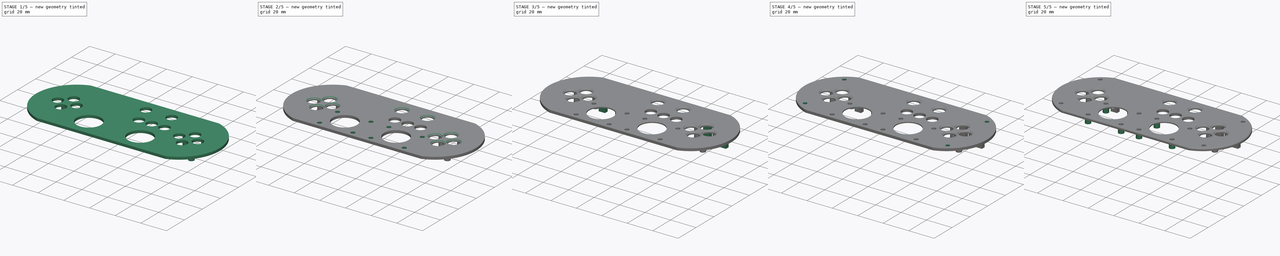
[diagram: build sequence overview — one tinted view per stage of 5, left to right]
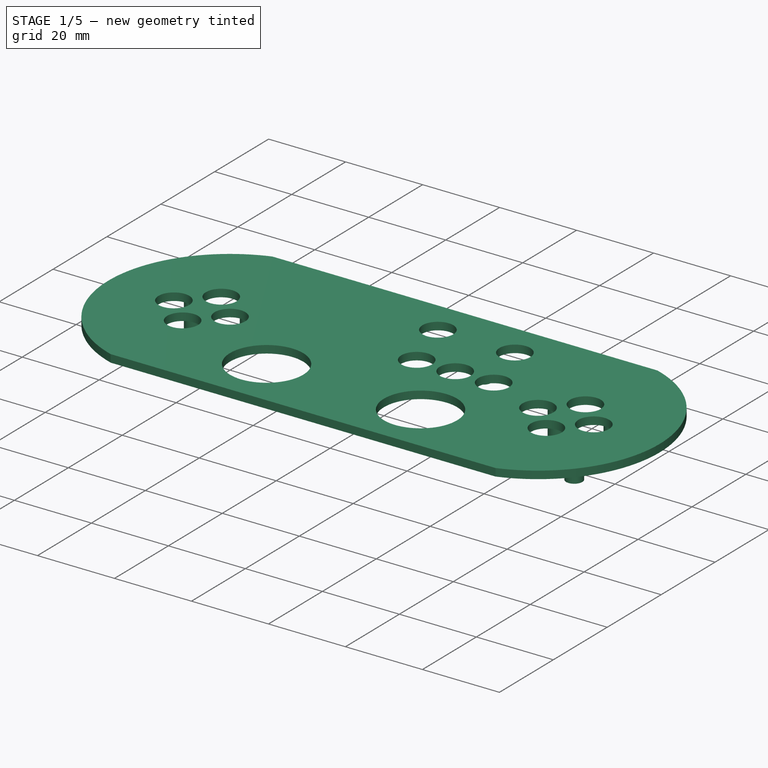
[diagram: stage 1 of 5 — iso view after this stage's code; geometry added in this stage tinted green]
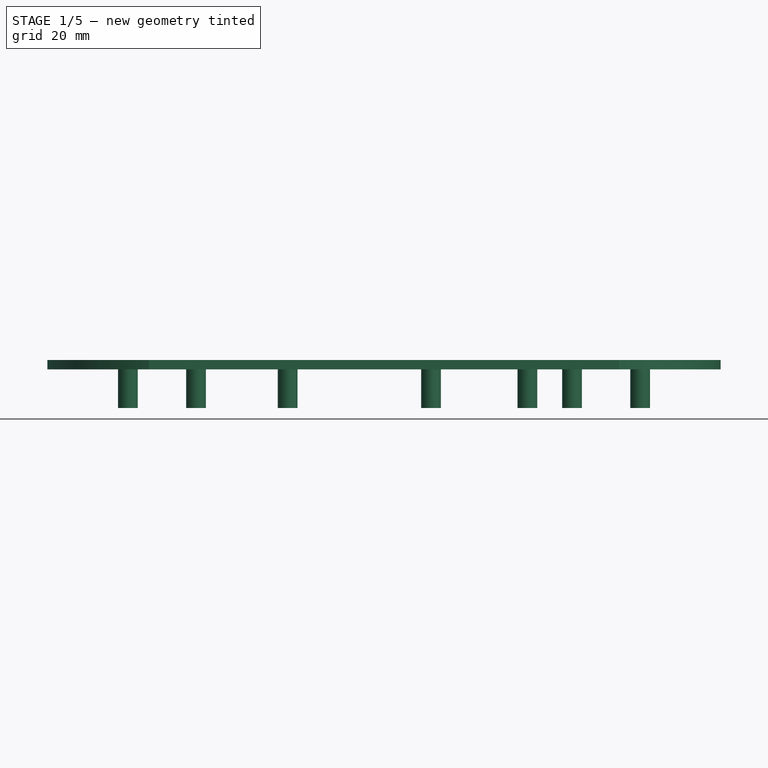
[diagram: stage 1 of 5 — front view after this stage's code; geometry added in this stage tinted green]
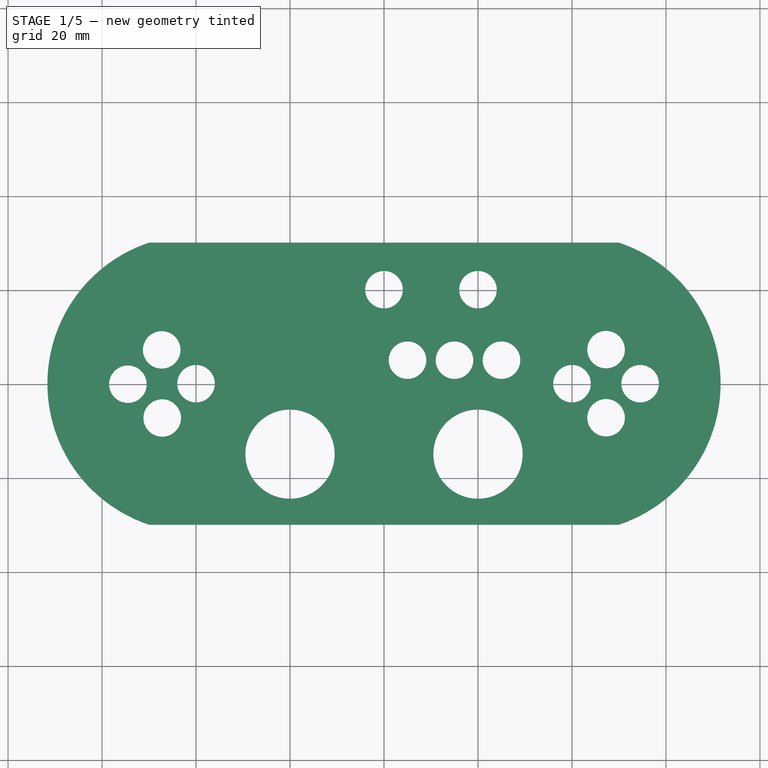
[diagram: stage 1 of 5 — top view after this stage's code; geometry added in this stage tinted green]
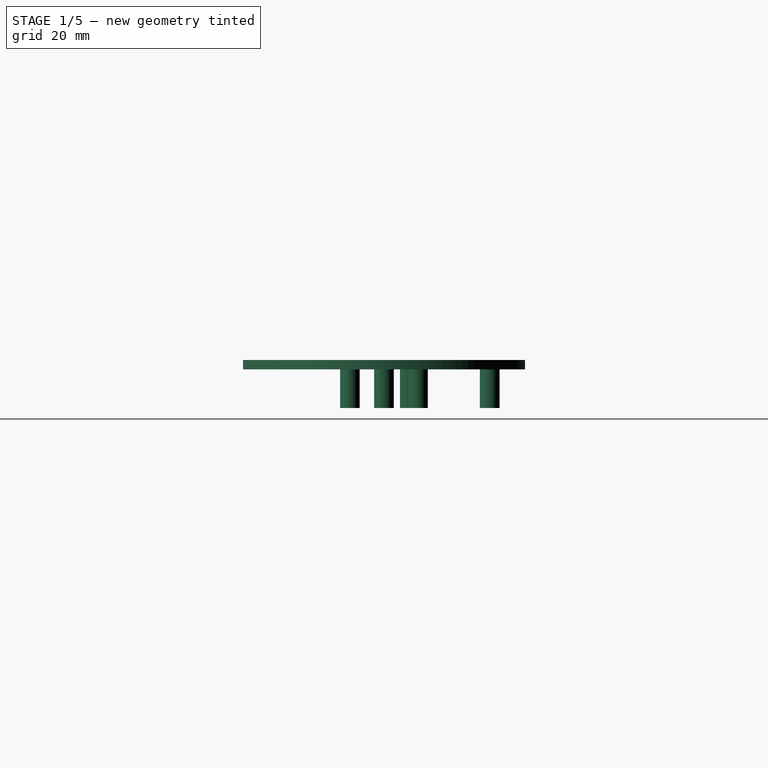
[diagram: stage 1 of 5 — right view after this stage's code; geometry added in this stage tinted green]
FCSTD DOCUMENT  (FreeCAD 0.20R29410 (Git))
Label: ggp-topdeck
License: All rights reserved
LicenseURL: http://en.wikipedia.org/wiki/All_rights_reserved
objects: Sketcher::SketchObject×11, PartDesign::Pocket×7, PartDesign::Pad×4, PartDesign::Chamfer×4, PartDesign::Fillet×1, PartDesign::Body×1
note: 44 computed .brp shape members not serialized (recipe doc carries the construction recipe); baked Part::Feature solids carry a one-line shape summary decoded from their .brp

FEATURE [Sketcher::SketchObject] Sketch
  FullyConstrained = true
  MapMode = 5
  Support = -> [XY_Plane]
  sketch-geometry (4):
    g0: LineSegment StartX=-50 StartY=30 StartZ=0 EndX=50 EndY=30 EndZ=0
    g1: LineSegment StartX=-50 StartY=-30 StartZ=0 EndX=50 EndY=-30 EndZ=0
    g2: ArcOfCircle CenterX=-40.0088 CenterY=0 CenterZ=0 NormalX=0 NormalY=0 NormalZ=1 AngleXU=0 Radius=31.62 StartAngle=1.89228 EndAngle=4.3909
    g3: ArcOfCircle CenterX=40.0088 CenterY=0 CenterZ=0 NormalX=0 NormalY=0 NormalZ=1 AngleXU=0 Radius=31.62 StartAngle=5.03388 EndAngle=7.53249
  constraints (14):
    c: Horizontal(g0)
    c: Horizontal(g1)
    c: PointOnObject(g2,g-1)
    c: Coincident(g2,g0)
    c: Coincident(g2,g1)
    c: PointOnObject(g3,g-1)
    c: Coincident(g3,g0)
    c: Coincident(g3,g1)
    c: DistanceX(g0) = 50
    c: DistanceY(g0) = 30
    c: DistanceX(g1) = 50
    c: DistanceX(g1) = -50
    c: Radius(g3) = 31.62
    c: Radius(g2) = 31.62
FEATURE [PartDesign::Pad] Pad
  Direction = (0,0,1)
  Length = 2
  Length2 = 10
  Profile = -> Sketch
  ReferenceAxis = -> Sketch [N_Axis]
  Type = 0
FEATURE [Sketcher::SketchObject] Sketch001
  ExternalGeometry = -> [Pad]
  FullyConstrained = true
  MapMode = 5
  Placement = pos=(0,0,2) rot=(0,0,1;0rad)
  Support = -> [Pad]
  sketch-geometry (15):
    g0: Circle CenterX=-47.3054 CenterY=7.19406 CenterZ=0 NormalX=0 NormalY=0 NormalZ=1 AngleXU=0 Radius=4
    g1: Circle CenterX=-40 CenterY=0 CenterZ=0 NormalX=0 NormalY=0 NormalZ=1 AngleXU=0 Radius=4
    g2: Circle CenterX=-47.1936 CenterY=-7.30594 CenterZ=0 NormalX=0 NormalY=0 NormalZ=1 AngleXU=0 Radius=4
    g3: Circle CenterX=-54.499 CenterY=-0.111878 CenterZ=0 NormalX=0 NormalY=0 NormalZ=1 AngleXU=0 Radius=4
    g4: Circle CenterX=40.0088 CenterY=0 CenterZ=0 NormalX=0 NormalY=0 NormalZ=1 AngleXU=0 Radius=4
    g5: Circle CenterX=47.2588 CenterY=7.24993 CenterZ=0 NormalX=0 NormalY=0 NormalZ=1 AngleXU=0 Radius=4
    g6: Circle CenterX=54.5088 CenterY=0 CenterZ=0 NormalX=0 NormalY=0 NormalZ=1 AngleXU=0 Radius=4
    g7: Circle CenterX=47.2589 CenterY=-7.25007 CenterZ=0 NormalX=0 NormalY=0 NormalZ=1 AngleXU=0 Radius=4
    g8: Circle CenterX=20 CenterY=-15 CenterZ=0 NormalX=0 NormalY=0 NormalZ=1 AngleXU=0 Radius=9.5
    g9: Circle CenterX=-20 CenterY=-15 CenterZ=0 NormalX=0 NormalY=0 NormalZ=1 AngleXU=0 Radius=9.5
    g10: Circle CenterX=15 CenterY=5 CenterZ=0 NormalX=0 NormalY=0 NormalZ=1 AngleXU=0 Radius=4
    g11: Circle CenterX=25 CenterY=5 CenterZ=0 NormalX=0 NormalY=0 NormalZ=1 AngleXU=0 Radius=4
    g12: Circle CenterX=20 CenterY=20 CenterZ=0 NormalX=0 NormalY=0 NormalZ=1 AngleXU=0 Radius=4
    g13: Circle CenterX=0 CenterY=20 CenterZ=0 NormalX=0 NormalY=0 NormalZ=1 AngleXU=0 Radius=4
    g14: Circle CenterX=5 CenterY=5 CenterZ=0 NormalX=0 NormalY=0 NormalZ=1 AngleXU=0 Radius=4
  constraints (44):
    c: DistanceY(g2,g0) = 14.5
    c: Distance(g0,g1) = 10.253
    c: Distance(g3,g2) = 10.253
    c: Distance(g2,g1) = 10.253
    c: Distance(g3,g0) = 10.253
    c: Radius(g0) = 4
    c: Radius(g1) = 4
    c: Radius(g2) = 4
    c: Radius(g3) = 4
    c: DistanceX(g3,g1) = 14.499
    c: DistanceX(g1) = -40
    c: DistanceY(g1) = 0
    c: Coincident(g4,g-4)
    c: PointOnObject(g6,g-1)
    c: Radius(g6) = 4
    c: Radius(g5) = 4
    c: Radius(g4) = 4
    c: Radius(g7) = 4
    c: Distance(g4,g5) = 10.253
    c: Distance(g7,g6) = 10.253
    c: Distance(g6,g5) = 10.253
    c: DistanceX(g4,g6) = 14.5
    c: Distance(g7,g5) = 14.5
    c: Radius(g8) = 9.5
    c: Radius(g9) = 9.5
    c: DistanceX(g8) = 20
    c: DistanceY(g8) = -15
    c: DistanceX(g9) = -20
    c: DistanceY(g9) = -15
    c: PointOnObject(g13,g-2)
    c: Radius(g12) = 4
    c: Radius(g11) = 4
    c: Radius(g10) = 4
    c: Radius(g13) = 4
    c: DistanceX(g12) = 20
    c: DistanceY(g12) = 20
    c: DistanceX(g11) = 25
    c: DistanceY(g11) = 5
    c: DistanceX(g11,g10) = -10
    c: DistanceY(g11,g10) = 0
    c: DistanceY(g13) = 20
    c: Radius(g14) = 4
    c: DistanceX(g14) = 5
    c: DistanceY(g14) = 5
FEATURE [PartDesign::Pocket] Pocket
  BaseFeature = -> Pad
  Direction = (0,0,-1)
  Length = 5
  Length2 = 5
  Profile = -> Sketch001
  ReferenceAxis = -> Sketch001 [N_Axis]
  Type = 0
FEATURE [Sketcher::SketchObject] Sketch002
  ExternalGeometry = -> [Pocket]
  FullyConstrained = true
  MapMode = 5
  Placement = pos=(0,0,0) rot=(1,0,0;3.14159rad)
  Support = -> [Pocket]
  sketch-geometry (22):
    g0: Circle CenterX=-40 CenterY=7.25 CenterZ=0 NormalX=0 NormalY=0 NormalZ=1 AngleXU=0 Radius=2.1
    g1: Circle CenterX=-54.5 CenterY=7.25 CenterZ=0 NormalX=0 NormalY=0 NormalZ=1 AngleXU=0 Radius=2.1
    g2: Circle CenterX=-40 CenterY=-7.25 CenterZ=0 NormalX=0 NormalY=0 NormalZ=1 AngleXU=0 Radius=2.1
    g3: Circle CenterX=-54.5 CenterY=-7.25 CenterZ=0 NormalX=0 NormalY=0 NormalZ=1 AngleXU=0 Radius=2.1
    g4: Circle CenterX=40 CenterY=-7.25 CenterZ=0 NormalX=0 NormalY=0 NormalZ=1 AngleXU=0 Radius=2.1
    g5: Circle CenterX=54.5 CenterY=-7.25 CenterZ=0 NormalX=0 NormalY=0 NormalZ=1 AngleXU=0 Radius=2.1
    g6: Circle CenterX=54.5 CenterY=7.25 CenterZ=0 NormalX=0 NormalY=0 NormalZ=1 AngleXU=0 Radius=2.1
    g7: Circle CenterX=40 CenterY=7.25 CenterZ=0 NormalX=0 NormalY=0 NormalZ=1 AngleXU=0 Radius=2.1
    g8: Circle CenterX=30.5088 CenterY=0 CenterZ=0 NormalX=0 NormalY=0 NormalZ=1 AngleXU=0 Radius=2.1
    g9: Circle CenterX=-20.5 CenterY=-5.5 CenterZ=0 NormalX=0 NormalY=0 NormalZ=1 AngleXU=0 Radius=2.1
    g10: Circle CenterX=10 CenterY=-22.5 CenterZ=0 NormalX=0 NormalY=0 NormalZ=1 AngleXU=0 Radius=2.1
    g11: Circle CenterX=30.5088 CenterY=0 CenterZ=0 NormalX=0 NormalY=0 NormalZ=1 AngleXU=0 Radius=1.45
    g12: Circle CenterX=40 CenterY=7.25 CenterZ=0 NormalX=0 NormalY=0 NormalZ=1 AngleXU=0 Radius=1.45
    g13: Circle CenterX=54.5 CenterY=7.25 CenterZ=0 NormalX=0 NormalY=0 NormalZ=1 AngleXU=0 Radius=1.45
    g14: Circle CenterX=54.5 CenterY=-7.25 CenterZ=0 NormalX=0 NormalY=0 NormalZ=1 AngleXU=0 Radius=1.45
    g15: Circle CenterX=40 CenterY=-7.25 CenterZ=0 NormalX=0 NormalY=0 NormalZ=1 AngleXU=0 Radius=1.45
    g16: Circle CenterX=-20.5 CenterY=-5.5 CenterZ=0 NormalX=0 NormalY=0 NormalZ=1 AngleXU=0 Radius=1.45
    g17: Circle CenterX=10 CenterY=-22.5 CenterZ=0 NormalX=0 NormalY=0 NormalZ=1 AngleXU=0 Radius=1.45
    g18: Circle CenterX=-40 CenterY=7.25 CenterZ=0 NormalX=0 NormalY=0 NormalZ=1 AngleXU=0 Radius=1.45
    g19: Circle CenterX=-54.5 CenterY=7.25 CenterZ=0 NormalX=0 NormalY=0 NormalZ=1 AngleXU=0 Radius=1.45
    g20: Circle CenterX=-54.5 CenterY=-7.25 CenterZ=0 NormalX=0 NormalY=0 NormalZ=1 AngleXU=0 Radius=1.45
    g21: Circle CenterX=-40 CenterY=-7.25 CenterZ=0 NormalX=0 NormalY=0 NormalZ=1 AngleXU=0 Radius=1.45
  constraints (56):
    c: Radius(g0) = 2.1
    c: Radius(g1) = 2.1
    c: Radius(g3) = 2.1
    c: Radius(g2) = 2.1
    c: DistanceX(g0) = -40
    c: DistanceY(g0) = 7.25
    c: DistanceX(g2) = -40
    c: DistanceY(g2) = -7.25
    c: DistanceX(g3) = -54.5
    c: DistanceY(g3) = -7.25
    c: DistanceX(g1) = -54.5
    c: DistanceY(g1) = 7.25
    c: DistanceY(g4,g7) = 14.5
    c: DistanceX(g7,g6) = 14.5
    c: DistanceX(g-1,g7) = 40
    c: DistanceY(g4,g-1) = 7.25
    c: Radius(g6) = 2.1
    c: Radius(g7) = 2.1
    c: Radius(g4) = 2.1
    c: Radius(g5) = 2.1
    c: DistanceY(g6) = 7.25
    c: DistanceX(g5) = 54.5
    c: DistanceY(g5) = -7.25
    c: DistanceX(g4) = 40
    c: PointOnObject(g8,g-1)
    c: DistanceX(g8,g-4) = 9.5
    c: Radius(g9) = 2.1
    c: Radius(g8) = 2.1
    c: Radius(g10) = 2.1
    c: DistanceX(g10) = 10
    c: DistanceY(g10) = -22.5
    c: Coincident(g11,g8)
    c: Radius(g11) = 1.45
    c: Coincident(g12,g7)
    c: Radius(g12) = 1.45
    c: Coincident(g13,g6)
    c: Radius(g13) = 1.45
    c: Coincident(g14,g5)
    c: Radius(g14) = 1.45
    c: Coincident(g15,g4)
    c: Radius(g15) = 1.45
    c: Radius(g16) = 1.45
    c: Coincident(g17,g10)
    c: Radius(g17) = 1.45
    c: Coincident(g18,g0)
    c: Coincident(g19,g1)
    c: Coincident(g20,g3)
    c: Coincident(g21,g2)
    c: Radius(g18) = 1.45
    c: Radius(g19) = 1.45
    c: Radius(g21) = 1.45
    c: Radius(g20) = 1.45
    c: DistanceX(g9,g-1) = 20.5
    c: DistanceX(g16,g-1) = 20.5
    c: DistanceY(g9,g-1) = 5.5
    c: DistanceY(g16,g-1) = 5.5
FEATURE [PartDesign::Pad] Pad001
  BaseFeature = -> Pocket
  Direction = (0,0,-1)
  Length = 8.2
  Length2 = 10
  Profile = -> Sketch002
  ReferenceAxis = -> Sketch002 [N_Axis]
  Type = 0
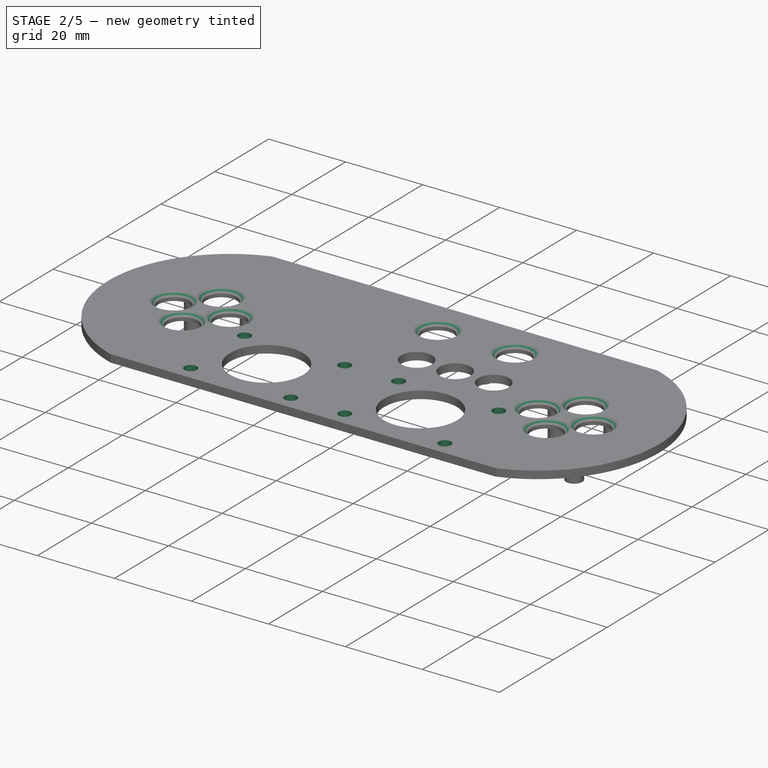
[diagram: stage 2 of 5 — iso view after this stage's code; geometry added in this stage tinted green]
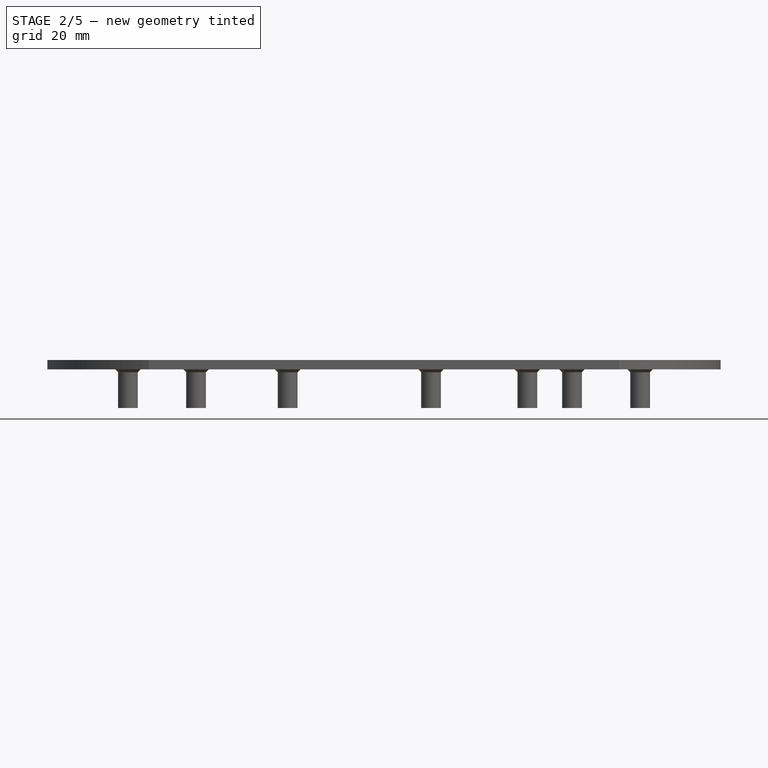
[diagram: stage 2 of 5 — front view after this stage's code; geometry added in this stage tinted green]
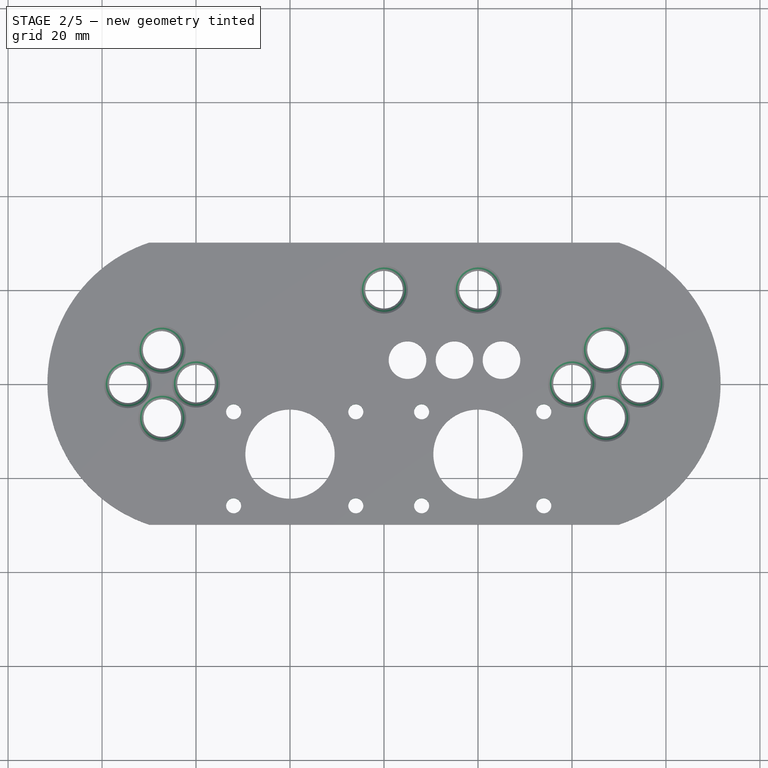
[diagram: stage 2 of 5 — top view after this stage's code; geometry added in this stage tinted green]
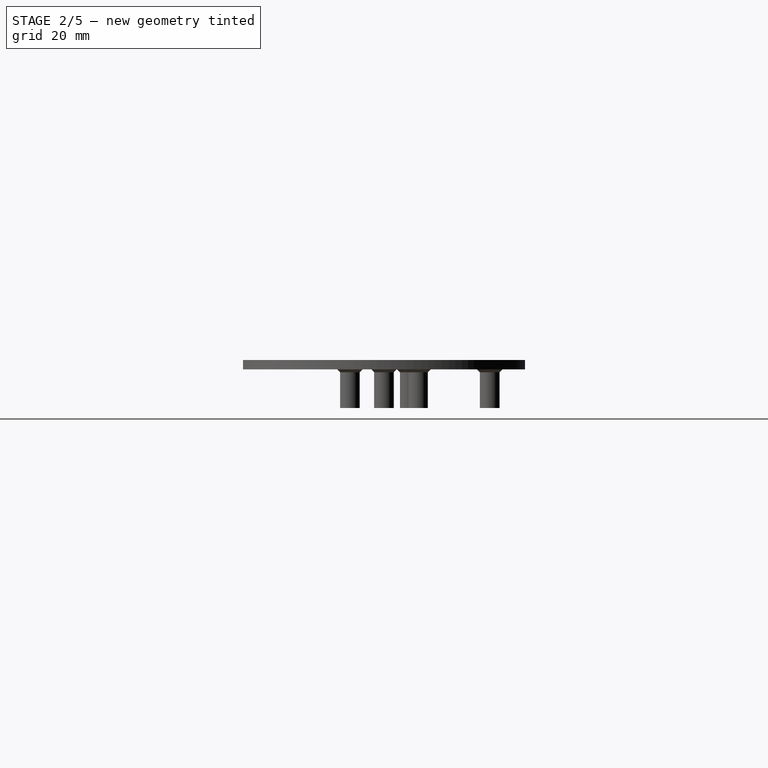
[diagram: stage 2 of 5 — right view after this stage's code; geometry added in this stage tinted green]
FEATURE [Sketcher::SketchObject] Sketch003
  ExternalGeometry = -> [Pad001]
  FullyConstrained = true
  MapMode = 5
  Placement = pos=(0,0,0) rot=(1,0,0;3.14159rad)
  Support = -> [Pad001]
  sketch-geometry (8):
    g0: Circle CenterX=-32 CenterY=26 CenterZ=0 NormalX=0 NormalY=0 NormalZ=1 AngleXU=0 Radius=1.6
    g1: Circle CenterX=-6 CenterY=26 CenterZ=0 NormalX=0 NormalY=0 NormalZ=1 AngleXU=0 Radius=1.6
    g2: Circle CenterX=-6 CenterY=6 CenterZ=0 NormalX=0 NormalY=0 NormalZ=1 AngleXU=0 Radius=1.6
    g3: Circle CenterX=-32 CenterY=6 CenterZ=0 NormalX=0 NormalY=0 NormalZ=1 AngleXU=0 Radius=1.6
    g4: Circle CenterX=8 CenterY=6 CenterZ=0 NormalX=0 NormalY=0 NormalZ=1 AngleXU=0 Radius=1.6
    g5: Circle CenterX=8 CenterY=26 CenterZ=0 NormalX=0 NormalY=0 NormalZ=1 AngleXU=0 Radius=1.6
    g6: Circle CenterX=34 CenterY=26 CenterZ=0 NormalX=0 NormalY=0 NormalZ=1 AngleXU=0 Radius=1.6
    g7: Circle CenterX=34 CenterY=6 CenterZ=0 NormalX=0 NormalY=0 NormalZ=1 AngleXU=0 Radius=1.6
  constraints (24):
    c: Radius(g3) = 1.6
    c: Radius(g2) = 1.6
    c: Radius(g1) = 1.6
    c: Radius(g0) = 1.6
    c: DistanceX(g3) = -32
    c: DistanceY(g3) = 6
    c: DistanceX(g0) = -32
    c: DistanceY(g0) = 26
    c: DistanceX(g1) = -6
    c: DistanceY(g1) = 26
    c: DistanceX(g2) = -6
    c: DistanceY(g2) = 6
    c: Radius(g4) = 1.6
    c: Radius(g5) = 1.6
    c: Radius(g6) = 1.6
    c: Radius(g7) = 1.6
    c: DistanceX(g4) = 8
    c: DistanceY(g4) = 6
    c: DistanceX(g5) = 8
    c: DistanceY(g5) = 26
    c: DistanceX(g7) = 34
    c: DistanceY(g7) = 6
    c: DistanceX(g6) = 34
    c: DistanceY(g6) = 26
FEATURE [PartDesign::Pocket] Pocket001
  BaseFeature = -> Pad001
  Direction = (0,0,1)
  Length = 5
  Length2 = 5
  Profile = -> Sketch003
  ReferenceAxis = -> Sketch003 [N_Axis]
  Type = 0
FEATURE [PartDesign::Chamfer] Chamfer
  Angle = 45
  Base = -> Pocket001 [Edge15,Edge17,Edge32,Edge30,Edge33,Edge44,Edge38,Edge25,Edge41,Edge27,Edge43]
  BaseFeature = -> Pocket001
  ChamferType = 0
  FlipDirection = false
  Size = 0.6
  Size2 = 1
  SupportTransform = false
  UseAllEdges = false
FEATURE [PartDesign::Chamfer] Chamfer001
  Angle = 45
  Base = -> Chamfer [Edge73,Edge77,Edge75,Edge55,Edge79,Edge93,Edge91,Edge89,Edge71,Edge87]
  BaseFeature = -> Chamfer
  ChamferType = 0
  FlipDirection = false
  Size = 1.1
  Size2 = 1
  SupportTransform = false
  UseAllEdges = false
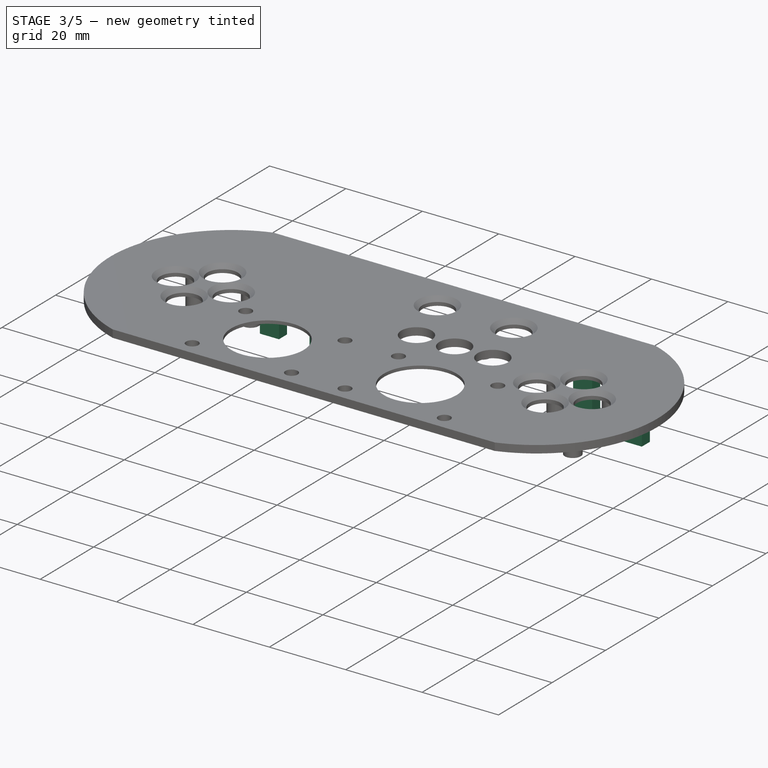
[diagram: stage 3 of 5 — iso view after this stage's code; geometry added in this stage tinted green]
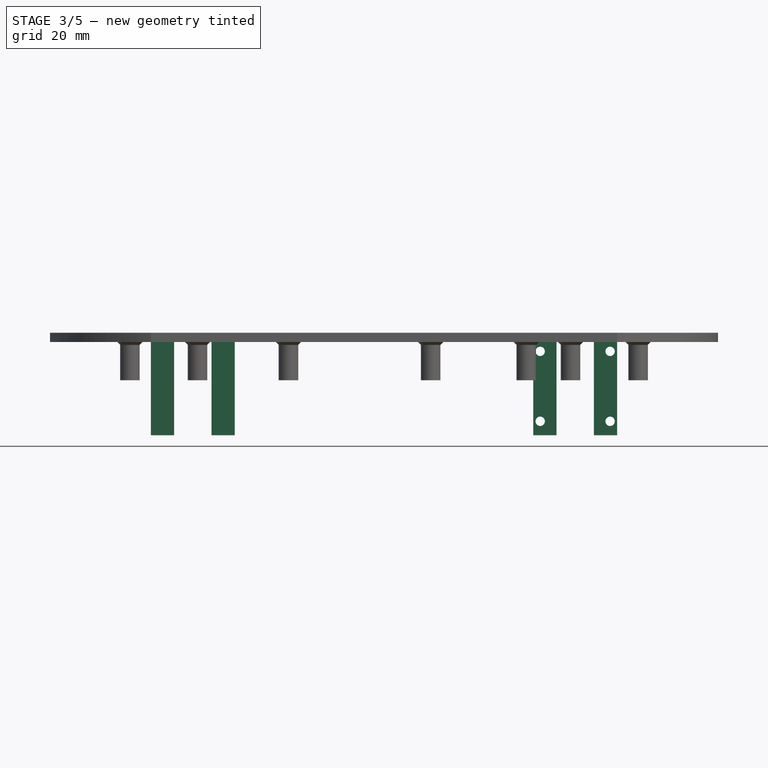
[diagram: stage 3 of 5 — front view after this stage's code; geometry added in this stage tinted green]
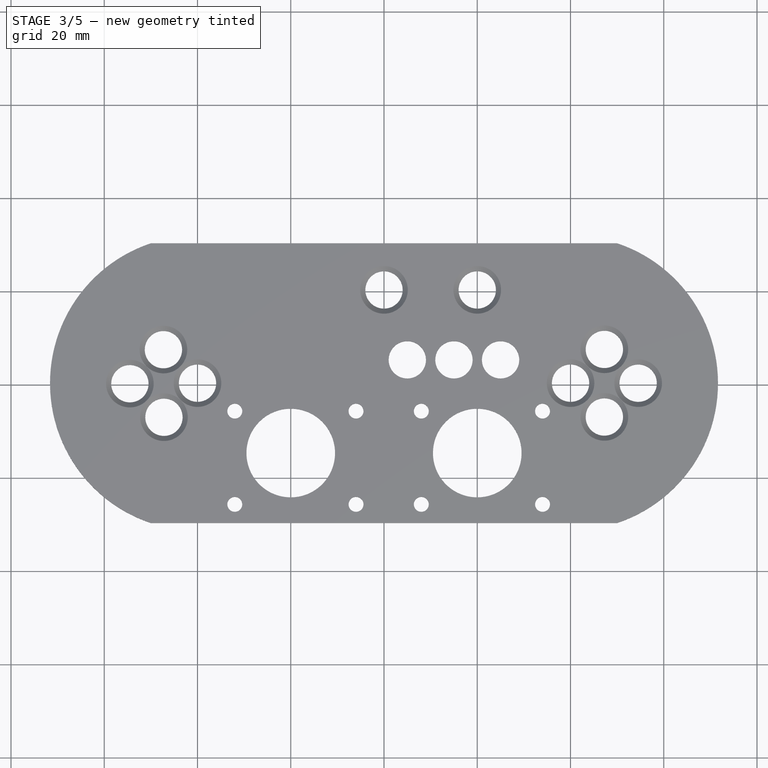
[diagram: stage 3 of 5 — top view after this stage's code; geometry added in this stage tinted green]
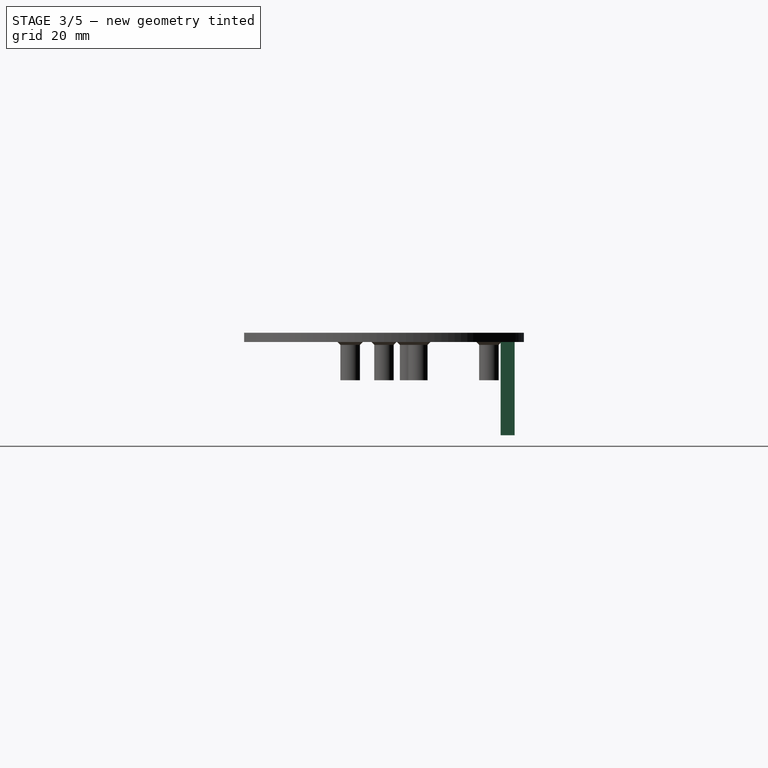
[diagram: stage 3 of 5 — right view after this stage's code; geometry added in this stage tinted green]
FEATURE [PartDesign::Chamfer] Chamfer002
  Angle = 45
  Base = -> Chamfer001 [Edge13,Edge17]
  BaseFeature = -> Chamfer001
  ChamferType = 1
  FlipDirection = false
  Size = 3
  Size2 = 1.2
  SupportTransform = false
  UseAllEdges = false
FEATURE [Sketcher::SketchObject] Sketch004
  ExternalGeometry = -> [Chamfer002]
  FullyConstrained = true
  MapMode = 5
  Placement = pos=(0,0,0) rot=(1,0,0;3.14159rad)
  Support = -> [Chamfer002]
  sketch-geometry (16):
    g0: LineSegment StartX=-50 StartY=-25 StartZ=0 EndX=-45 EndY=-25 EndZ=0
    g1: LineSegment StartX=-45 StartY=-25 StartZ=0 EndX=-45 EndY=-28 EndZ=0
    g2: LineSegment StartX=-45 StartY=-28 StartZ=0 EndX=-50 EndY=-28 EndZ=0
    g3: LineSegment StartX=-50 StartY=-28 StartZ=0 EndX=-50 EndY=-25 EndZ=0
    g4: LineSegment StartX=-37 StartY=-25 StartZ=0 EndX=-32 EndY=-25 EndZ=0
    g5: LineSegment StartX=-32 StartY=-25 StartZ=0 EndX=-32 EndY=-28.024 EndZ=0
    g6: LineSegment StartX=-32 StartY=-28.024 StartZ=0 EndX=-37 EndY=-28.024 EndZ=0
    g7: LineSegment StartX=-37 StartY=-28.024 StartZ=0 EndX=-37 EndY=-25 EndZ=0
    g8: LineSegment StartX=50 StartY=-25 StartZ=0 EndX=45 EndY=-25 EndZ=0
    g9: LineSegment StartX=45 StartY=-25 StartZ=0 EndX=45 EndY=-28 EndZ=0
    g10: LineSegment StartX=45 StartY=-28 StartZ=0 EndX=50 EndY=-28 EndZ=0
    g11: LineSegment StartX=50 StartY=-28 StartZ=0 EndX=50 EndY=-25 EndZ=0
    g12: LineSegment StartX=37 StartY=-25 StartZ=0 EndX=32 EndY=-25 EndZ=0
    g13: LineSegment StartX=32 StartY=-25 StartZ=0 EndX=32 EndY=-28 EndZ=0
    g14: LineSegment StartX=32 StartY=-28 StartZ=0 EndX=37 EndY=-28 EndZ=0
    g15: LineSegment StartX=37 StartY=-28 StartZ=0 EndX=37 EndY=-25 EndZ=0
  constraints (49):
    c: Coincident(g0,g1)
    c: Coincident(g1,g2)
    c: Coincident(g2,g3)
    c: Coincident(g3,g0)
    c: Horizontal(g0)
    c: Horizontal(g2)
    c: Vertical(g1)
    c: Vertical(g3)
    c: Coincident(g4,g5)
    c: Coincident(g5,g6)
    c: Coincident(g6,g7)
    c: Horizontal(g4)
    c: Horizontal(g6)
    c: Vertical(g5)
    c: Vertical(g7)
    c: DistanceY(g-4,g2) = 2
    c: DistanceX(g0) = -45
    c: DistanceY(g0) = -25
    c: DistanceX(g0,g4) = 8
    c: DistanceX(g4,g4) = 5
    c: DistanceY(g5) = -28.024
    c: DistanceY(g2,g7) = 3
    c: DistanceX(g3,g7) = 13
    c: DistanceX(g4,g7) = 0
    c: DistanceY(g4,g7) = 0
    c: Coincident(g8,g9)
    c: Coincident(g9,g10)
    c: Coincident(g10,g11)
    c: Coincident(g11,g8)
    c: Horizontal(g8)
    c: Horizontal(g10)
    c: Vertical(g9)
    c: Vertical(g11)
    c: Coincident(g12,g13)
    c: Coincident(g13,g14)
    c: Coincident(g14,g15)
    c: Coincident(g15,g12)
    c: Horizontal(g12)
    c: Horizontal(g14)
    c: Vertical(g13)
    c: Vertical(g15)
    c: DistanceY(g-5,g10) = 2
    c: DistanceY(g14,g12) = 3
    c: DistanceY(g9,g8) = 3
    c: DistanceX(g8,g8) = 5
    c: DistanceX(g12,g12) = 5
    c: DistanceX(g8) = 50
    c: DistanceX(g12,g8) = 8
    c: DistanceY(g12) = -25
FEATURE [PartDesign::Pad] Pad002
  BaseFeature = -> Chamfer002
  Direction = (0,0,-1)
  Length = 20
  Length2 = 10
  Profile = -> Sketch004
  ReferenceAxis = -> Sketch004 [N_Axis]
  Type = 0
FEATURE [Sketcher::SketchObject] Sketch005
  ExternalGeometry = -> [Pad002]
  FullyConstrained = true
  MapMode = 5
  Placement = pos=(0,28,0) rot=(0,0.707107,0.707107;3.14159rad)
  Support = -> [Pad002]
  sketch-geometry (2):
    g0: Circle CenterX=-48.4889 CenterY=-2 CenterZ=0 NormalX=0 NormalY=0 NormalZ=1 AngleXU=0 Radius=1
    g1: Circle CenterX=-48.4899 CenterY=-17 CenterZ=0 NormalX=0 NormalY=0 NormalZ=1 AngleXU=0 Radius=1
  constraints (6):
    c: Radius(g0) = 1
    c: Radius(g1) = 1
    c: DistanceX(g0) = -48.4889
    c: DistanceY(g0) = -2
    c: DistanceX(g1) = -48.4899
    c: DistanceY(g1) = -17
FEATURE [PartDesign::Pocket] Pocket002
  BaseFeature = -> Pad002
  Direction = (0,-1,2e-16)
  Length = 5
  Length2 = 5
  Profile = -> Sketch005
  ReferenceAxis = -> Sketch005 [N_Axis]
  Type = 0
FEATURE [Sketcher::SketchObject] Sketch006
  FullyConstrained = false
  MapMode = 5
  Placement = pos=(0,28,0) rot=(0,0.707107,0.707107;3.14159rad)
  Support = -> [Pocket002]
  sketch-geometry (2):
    g0: Circle CenterX=-33.5 CenterY=-2 CenterZ=0 NormalX=0 NormalY=0 NormalZ=1 AngleXU=0 Radius=1
    g1: Circle CenterX=-33.5 CenterY=-17 CenterZ=0 NormalX=0 NormalY=0 NormalZ=1 AngleXU=0 Radius=1.00219
  constraints (4):
    c: DistanceX(g0) = -33.5
    c: DistanceY(g0) = -2
    c: DistanceX(g1) = -33.5
    c: DistanceY(g1) = -17
FEATURE [PartDesign::Pocket] Pocket003
  BaseFeature = -> Pocket002
  Direction = (0,-1,2e-16)
  Length = 5
  Length2 = 5
  Profile = -> Sketch006
  ReferenceAxis = -> Sketch006 [N_Axis]
  Type = 0
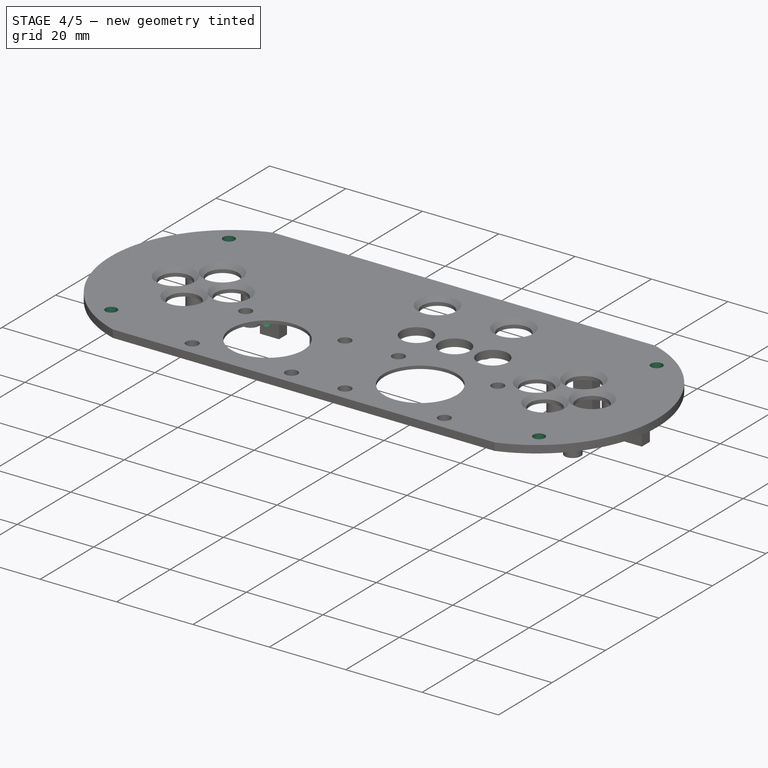
[diagram: stage 4 of 5 — iso view after this stage's code; geometry added in this stage tinted green]
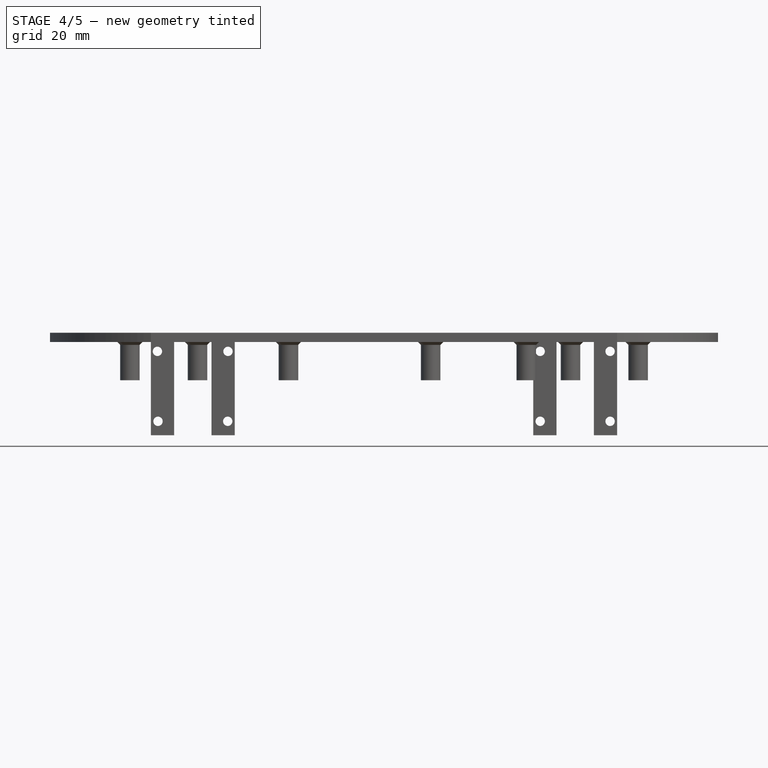
[diagram: stage 4 of 5 — front view after this stage's code; geometry added in this stage tinted green]
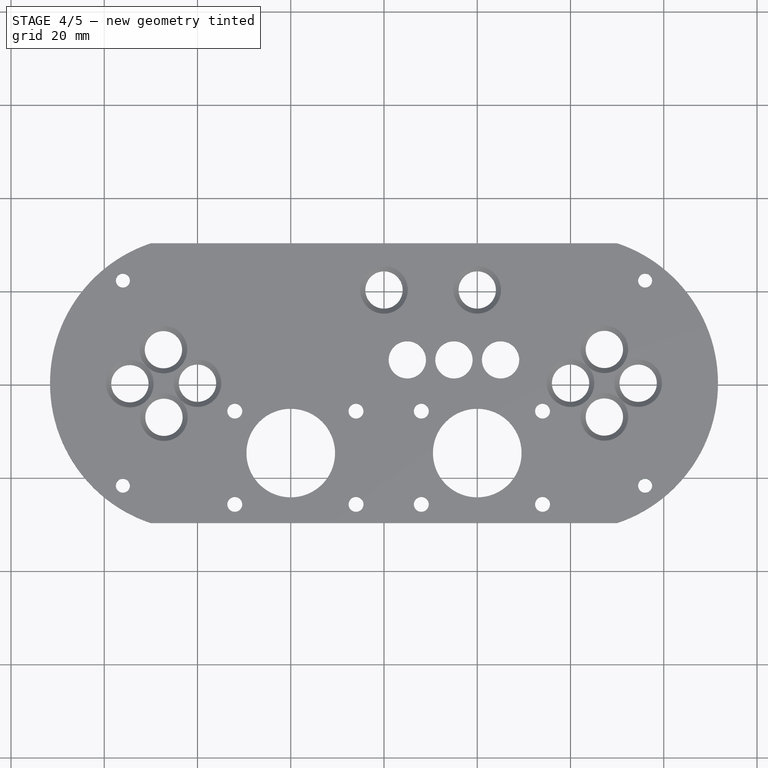
[diagram: stage 4 of 5 — top view after this stage's code; geometry added in this stage tinted green]
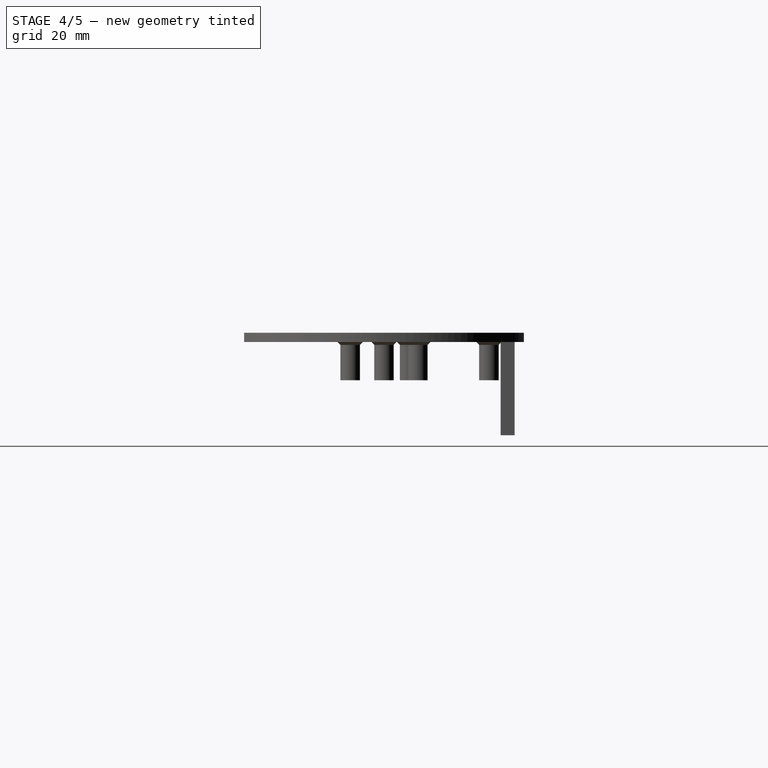
[diagram: stage 4 of 5 — right view after this stage's code; geometry added in this stage tinted green]
FEATURE [Sketcher::SketchObject] Sketch007
  FullyConstrained = true
  MapMode = 5
  Placement = pos=(0,28.024,0) rot=(0,0.707107,0.707107;3.14159rad)
  Support = -> [Pocket003]
  sketch-geometry (2):
    g0: Circle CenterX=48.5935 CenterY=-2 CenterZ=0 NormalX=0 NormalY=0 NormalZ=1 AngleXU=0 Radius=1
    g1: Circle CenterX=48.4635 CenterY=-17 CenterZ=0 NormalX=0 NormalY=0 NormalZ=1 AngleXU=0 Radius=1
  constraints (6):
    c: DistanceY(g1,g0) = 15
    c: DistanceX(g0) = 48.5935
    c: DistanceY(g0) = -2
    c: DistanceX(g1) = 48.4635
    c: Radius(g1) = 1
    c: Radius(g0) = 1
FEATURE [PartDesign::Pocket] Pocket004
  BaseFeature = -> Pocket003
  Direction = (0,-1,2e-16)
  Length = 5
  Length2 = 5
  Profile = -> Sketch007
  ReferenceAxis = -> Sketch007 [N_Axis]
  Type = 0
FEATURE [Sketcher::SketchObject] Sketch008
  FullyConstrained = true
  MapMode = 5
  Placement = pos=(0,28.024,0) rot=(0,0.707107,0.707107;3.14159rad)
  Support = -> [Pocket004]
  sketch-geometry (2):
    g0: Circle CenterX=33.4611 CenterY=-2 CenterZ=0 NormalX=0 NormalY=0 NormalZ=1 AngleXU=0 Radius=1
    g1: Circle CenterX=33.5182 CenterY=-17 CenterZ=0 NormalX=0 NormalY=0 NormalZ=1 AngleXU=0 Radius=1
  constraints (6):
    c: Radius(g1) = 1
    c: Radius(g0) = 1
    c: DistanceX(g0,g1) = 0.057098
    c: DistanceY(g0,g1) = -15
    c: DistanceX(g0) = 33.4611
    c: DistanceY(g0) = -2
FEATURE [PartDesign::Pocket] Pocket005
  BaseFeature = -> Pocket004
  Direction = (0,-1,2e-16)
  Length = 5
  Length2 = 5
  Profile = -> Sketch008
  ReferenceAxis = -> Sketch008 [N_Axis]
  Type = 0
FEATURE [Sketcher::SketchObject] Sketch009
  FullyConstrained = true
  MapMode = 5
  Placement = pos=(0,0,0) rot=(1,0,0;3.14159rad)
  Support = -> [Pocket005]
  sketch-geometry (4):
    g0: Circle CenterX=56 CenterY=22 CenterZ=0 NormalX=0 NormalY=0 NormalZ=1 AngleXU=0 Radius=1.5
    g1: Circle CenterX=56 CenterY=-22 CenterZ=0 NormalX=0 NormalY=0 NormalZ=1 AngleXU=0 Radius=1.5
    g2: Circle CenterX=-56 CenterY=-22 CenterZ=0 NormalX=0 NormalY=0 NormalZ=1 AngleXU=0 Radius=1.5
    g3: Circle CenterX=-56 CenterY=22 CenterZ=0 NormalX=0 NormalY=0 NormalZ=1 AngleXU=0 Radius=1.5
  constraints (12):
    c: Radius(g1) = 1.5
    c: Radius(g0) = 1.5
    c: Radius(g3) = 1.5
    c: Radius(g2) = 1.5
    c: DistanceX(g1) = 56
    c: DistanceY(g1) = -22
    c: DistanceX(g0) = 56
    c: DistanceY(g0) = 22
    c: DistanceX(g3) = -56
    c: DistanceY(g3) = 22
    c: DistanceX(g2) = -56
    c: DistanceY(g2) = -22
FEATURE [PartDesign::Pocket] Pocket006  label="mount-holes"
  BaseFeature = -> Pocket005
  Direction = (0,0,1)
  Length = 5
  Length2 = 5
  Profile = -> Sketch009
  ReferenceAxis = -> Sketch009 [N_Axis]
  Type = 0
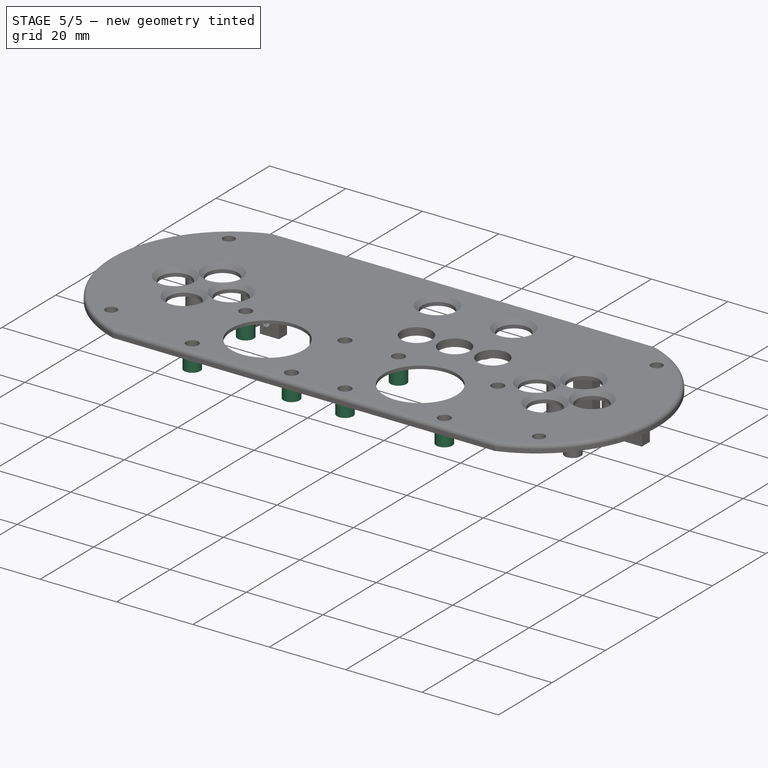
[diagram: stage 5 of 5 — iso view after this stage's code; geometry added in this stage tinted green]
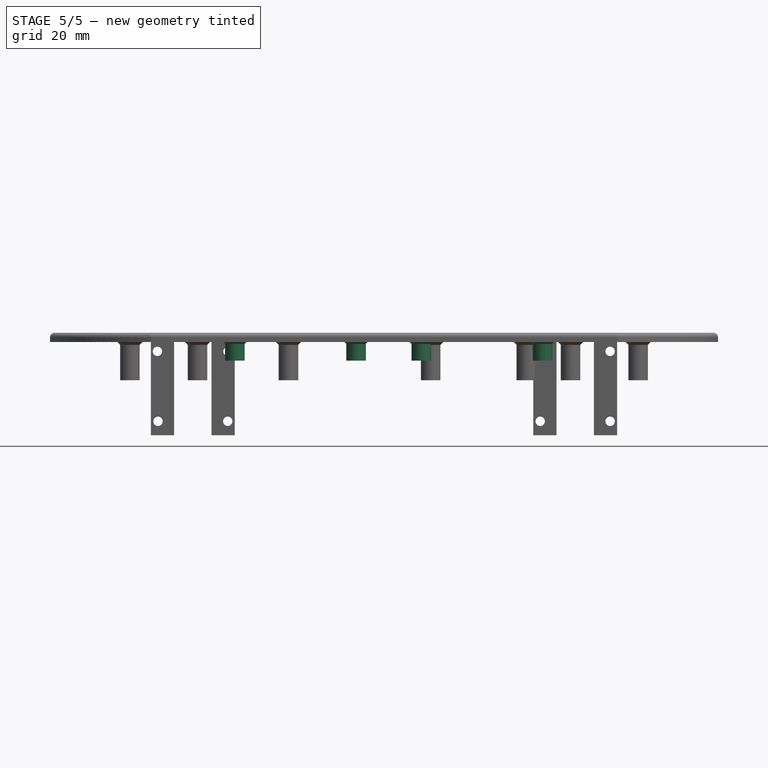
[diagram: stage 5 of 5 — front view after this stage's code; geometry added in this stage tinted green]
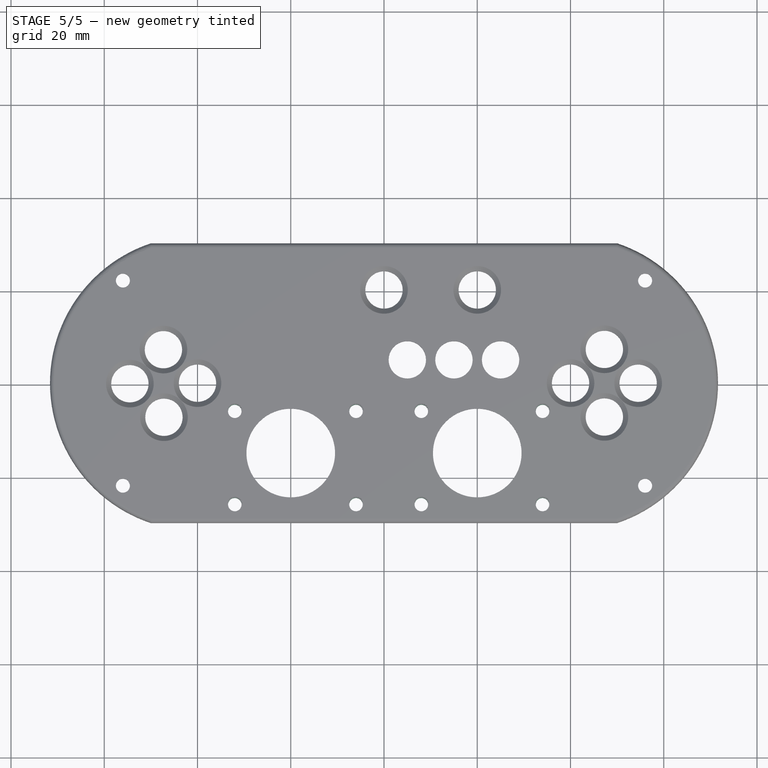
[diagram: stage 5 of 5 — top view after this stage's code; geometry added in this stage tinted green]
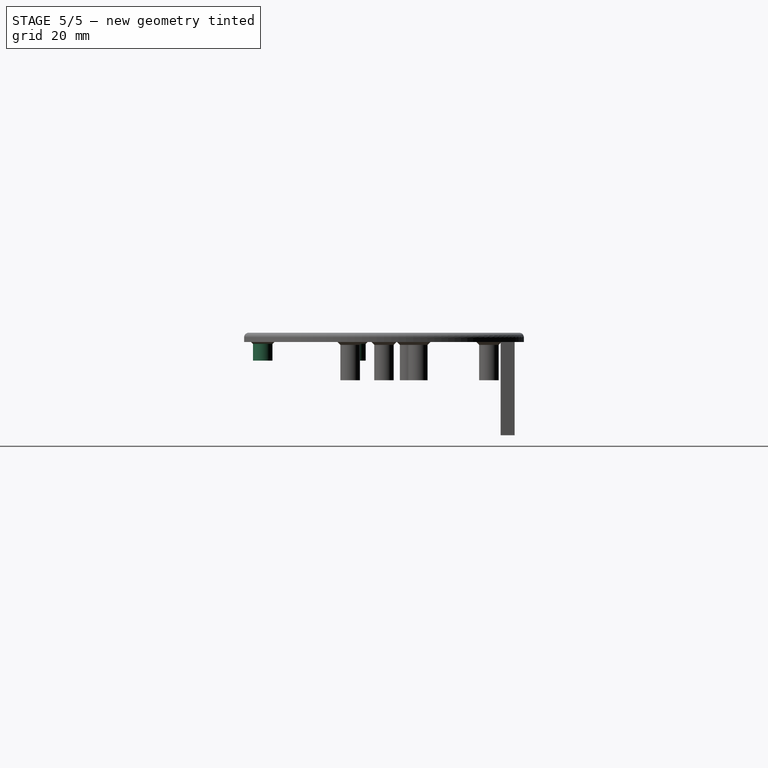
[diagram: stage 5 of 5 — right view after this stage's code; geometry added in this stage tinted green]
FEATURE [PartDesign::Fillet] Fillet
  Base = -> Pocket006 [Edge63,Edge61,Edge66,Edge65]
  BaseFeature = -> Pocket006
  Radius = 1
  SupportTransform = false
  UseAllEdges = false
FEATURE [Sketcher::SketchObject] Sketch010
  ExternalGeometry = -> [Fillet]
  FullyConstrained = true
  MapMode = 5
  Placement = pos=(0,0,0) rot=(1,0,0;3.14159rad)
  Support = -> [Fillet]
  sketch-geometry (16):
    g0: Circle CenterX=34 CenterY=26 CenterZ=0 NormalX=0 NormalY=0 NormalZ=1 AngleXU=0 Radius=2.1
    g1: Circle CenterX=34 CenterY=6 CenterZ=0 NormalX=0 NormalY=0 NormalZ=1 AngleXU=0 Radius=2.1
    g2: Circle CenterX=8 CenterY=26 CenterZ=0 NormalX=0 NormalY=0 NormalZ=1 AngleXU=0 Radius=2.1
    g3: Circle CenterX=8 CenterY=6 CenterZ=0 NormalX=0 NormalY=0 NormalZ=1 AngleXU=0 Radius=2.1
    g4: Circle CenterX=-6 CenterY=6 CenterZ=0 NormalX=0 NormalY=0 NormalZ=1 AngleXU=0 Radius=2.1
    g5: Circle CenterX=-32 CenterY=6 CenterZ=0 NormalX=0 NormalY=0 NormalZ=1 AngleXU=0 Radius=2.1
    g6: Circle CenterX=-32 CenterY=26 CenterZ=0 NormalX=0 NormalY=0 NormalZ=1 AngleXU=0 Radius=2.1
    g7: Circle CenterX=-6 CenterY=26 CenterZ=0 NormalX=0 NormalY=0 NormalZ=1 AngleXU=0 Radius=2.1
    g8: Circle CenterX=-32 CenterY=26 CenterZ=0 NormalX=0 NormalY=0 NormalZ=1 AngleXU=0 Radius=1.45
    g9: Circle CenterX=-6 CenterY=26 CenterZ=0 NormalX=0 NormalY=0 NormalZ=1 AngleXU=0 Radius=1.45
    g10: Circle CenterX=-32 CenterY=6 CenterZ=0 NormalX=0 NormalY=0 NormalZ=1 AngleXU=0 Radius=1.45
    g11: Circle CenterX=8 CenterY=6 CenterZ=0 NormalX=0 NormalY=0 NormalZ=1 AngleXU=0 Radius=1.45
    g12: Circle CenterX=34 CenterY=6 CenterZ=0 NormalX=0 NormalY=0 NormalZ=1 AngleXU=0 Radius=1.45
    g13: Circle CenterX=34 CenterY=26 CenterZ=0 NormalX=0 NormalY=0 NormalZ=1 AngleXU=0 Radius=1.45
    g14: Circle CenterX=8 CenterY=26 CenterZ=0 NormalX=0 NormalY=0 NormalZ=1 AngleXU=0 Radius=1.45
    g15: Circle CenterX=-6 CenterY=6 CenterZ=0 NormalX=0 NormalY=0 NormalZ=1 AngleXU=0 Radius=1.45
  constraints (32):
    c: Coincident(g0,g-10)
    c: Coincident(g1,g-9)
    c: Coincident(g2,g-7)
    c: Coincident(g3,g-8)
    c: Coincident(g4,g-3)
    c: Coincident(g5,g-6)
    c: Coincident(g6,g-5)
    c: Coincident(g7,g-4)
    c: Radius(g0) = 2.1
    c: Radius(g1) = 2.1
    c: Radius(g3) = 2.1
    c: Radius(g4) = 2.1
    c: Radius(g5) = 2.1
    c: Radius(g6) = 2.1
    c: Radius(g7) = 2.1
    c: Radius(g2) = 2.1
    c: Coincident(g8,g6)
    c: Coincident(g9,g7)
    c: Coincident(g10,g5)
    c: Coincident(g11,g3)
    c: Coincident(g12,g1)
    c: Coincident(g13,g0)
    c: Coincident(g14,g2)
    c: Radius(g8) = 1.45
    c: Radius(g9) = 1.45
    c: Radius(g10) = 1.45
    c: Radius(g11) = 1.45
    c: Radius(g12) = 1.45
    c: Radius(g13) = 1.45
    c: Radius(g14) = 1.45
    c: Coincident(g15,g4)
    c: Radius(g15) = 1.45
FEATURE [PartDesign::Pad] Pad003  label="stick-standoffs"
  BaseFeature = -> Fillet
  Direction = (0,0,-1)
  Length = 4
  Length2 = 10
  Profile = -> Sketch010
  ReferenceAxis = -> Sketch010 [N_Axis]
  Type = 0
FEATURE [PartDesign::Chamfer] Chamfer003  label="stick-standoff-chamfer"
  Angle = 45
  Base = -> Pad003 [Edge14,Edge21,Edge23,Edge15,Edge22,Edge27,Edge31,Edge25]
  BaseFeature = -> Pad003
  ChamferType = 0
  FlipDirection = false
  Size = 0.4
  Size2 = 1
  SupportTransform = false
  UseAllEdges = false
FEATURE [PartDesign::Body] Body
  Group = -> [Sketch,Pad,Sketch001,Pocket,Sketch002,Pad001,Sketch003,Pocket001,Chamfer,Chamfer001,Chamfer002,Sketch004,Pad002,Sketch005,Pocket002,Sketch006,Pocket003,Sketch007,Pocket004,Sketch008,Pocket005,Sketch009,Pocket006,Fillet,Sketch010,Pad003,Chamfer003]
  Origin = -> Origin
  Tip = -> Chamfer003
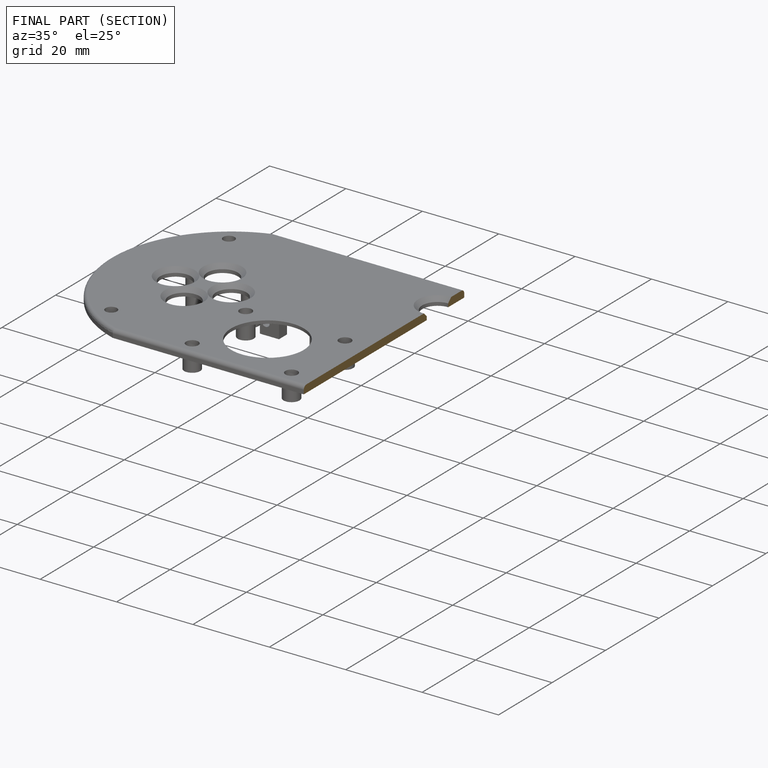
[diagram: finished part — half-section view (interior)]
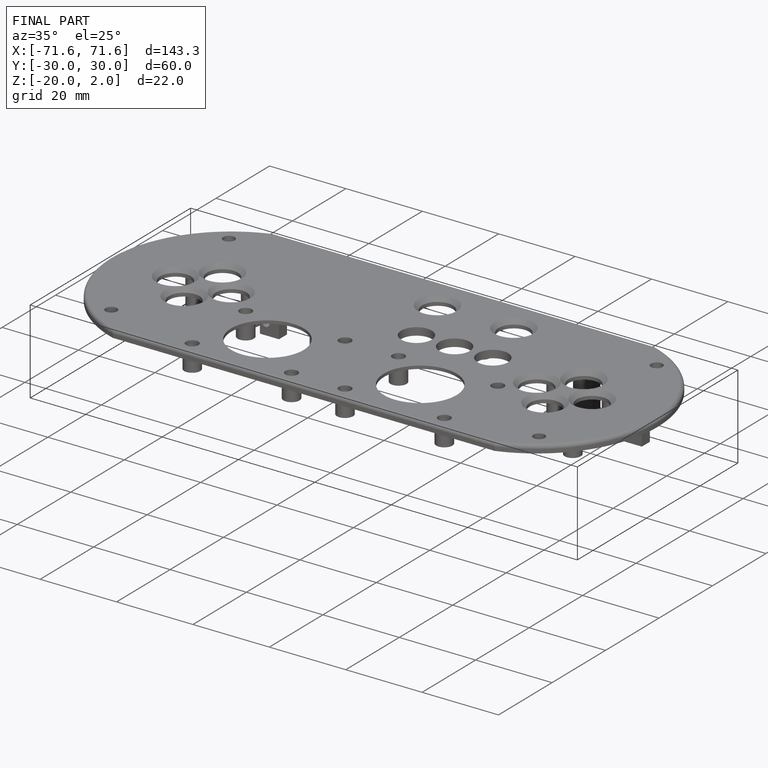
[diagram: finished part — iso view with bounding-box wireframe]
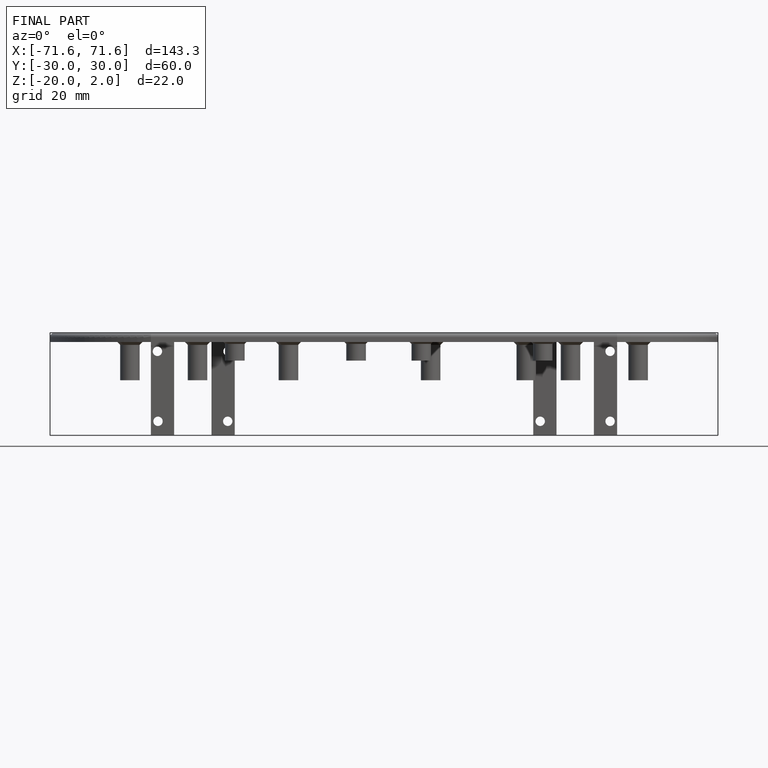
[diagram: finished part — front view with bounding-box wireframe]
